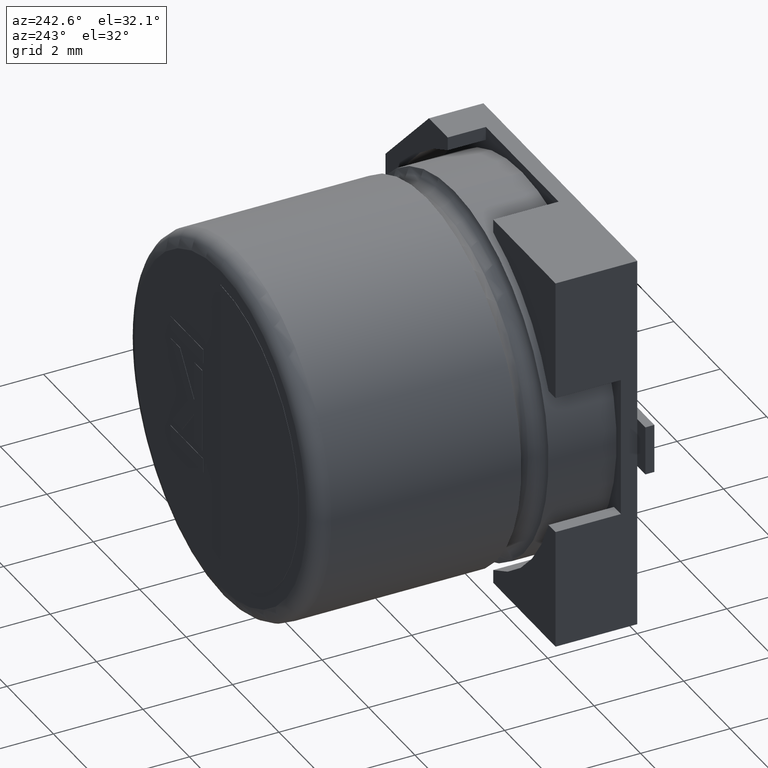
[diagram: clean part render]
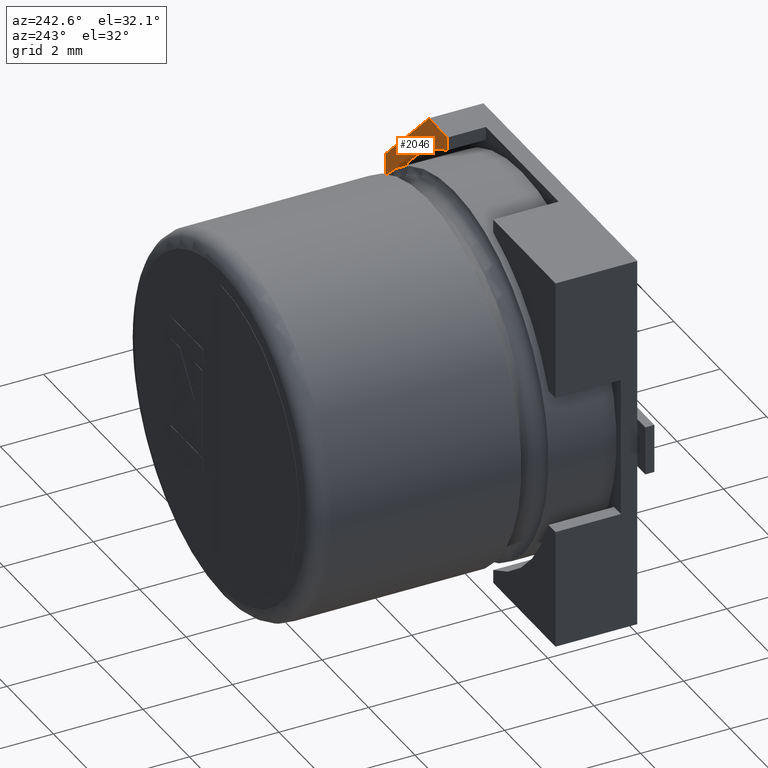
[diagram: same view with one face highlighted and labeled with its STEP entity id]
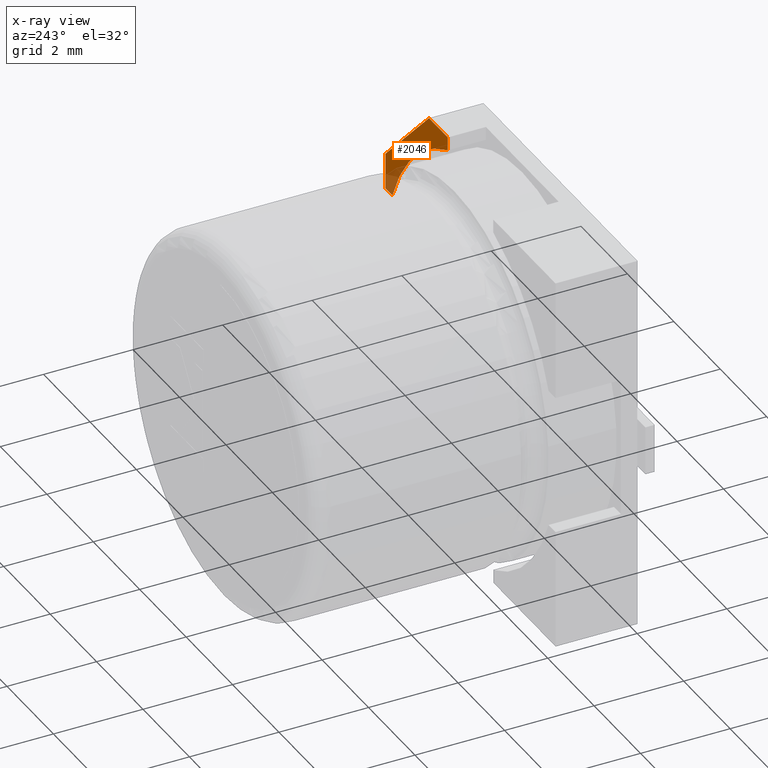
[diagram: x-ray of the same camera — body ghosted, the highlighted face saturated]
A machine part, auxiliary view. The second image highlights one B-rep face of the part: STEP entity #2046.
The next image is the same camera in x-ray: the body ghosted, the highlighted face saturated — about 15% of this face is hidden behind the body in this view.
In plain terms, the highlighted planar face has unit normal (0, -1, 0).
Its self-contained STEP definition (entity closure, byte-faithful):
#100 = LINE ( 'NONE', #809, #484 ) ;
#235 = VECTOR ( 'NONE', #2932, 1000.000000000000000 ) ;
#332 = LINE ( 'NONE', #765, #1005 ) ;
#383 = CIRCLE ( 'NONE', #1779, 4.250000000000000000 ) ;
#402 = CARTESIAN_POINT ( 'NONE',  ( 8.200000000000001100, 1.216666666666666800, -2.681561285864188200 ) ) ;
#484 = VECTOR ( 'NONE', #2912, 1000.000000000000000 ) ;
#489 = VERTEX_POINT ( 'NONE', #1372 ) ;
#493 = CARTESIAN_POINT ( 'NONE',  ( 8.500000000000000000, 1.216666666666666800, -1.874250000000003500 ) ) ;
#557 = LINE ( 'NONE', #1952, #2714 ) ;
#583 = LINE ( 'NONE', #727, #3125 ) ;
#652 = VERTEX_POINT ( 'NONE', #3263 ) ;
#727 = CARTESIAN_POINT ( 'NONE',  ( 5.818438714135812300, 1.216666666666666800, 0.0000000000000000000 ) ) ;
#765 = CARTESIAN_POINT ( 'NONE',  ( 6.625750000000000900, 1.216666666666666800, 0.0000000000000000000 ) ) ;
#809 = CARTESIAN_POINT ( 'NONE',  ( 8.500000000000000000, 1.216666666666666800, -8.500000000000000000 ) ) ;
#847 = DIRECTION ( 'NONE',  ( 0.0000000000000000000, -1.000000000000000000, 0.0000000000000000000 ) ) ;
#857 = ORIENTED_EDGE ( 'NONE', *, *, #1926, .F. ) ;
#1005 = VECTOR ( 'NONE', #2598, 1000.000000000000100 ) ;
#1021 = CARTESIAN_POINT ( 'NONE',  ( 4.250000000000000000, 1.216666666666666800, -4.250000000000000000 ) ) ;
#1038 = EDGE_CURVE ( 'NONE', #652, #1992, #2118, .T. ) ;
#1043 = DIRECTION ( 'NONE',  ( -0.0000000000000000000, 1.000000000000000000, -0.0000000000000000000 ) ) ;
#1076 = VERTEX_POINT ( 'NONE', #402 ) ;
#1127 = CARTESIAN_POINT ( 'NONE',  ( 5.818438714135812300, 1.216666666666666800, 0.0000000000000000000 ) ) ;
#1268 = VERTEX_POINT ( 'NONE', #493 ) ;
#1279 = CARTESIAN_POINT ( 'NONE',  ( 6.625750000000000900, 1.216666666666666800, 0.0000000000000000000 ) ) ;
#1303 = DIRECTION ( 'NONE',  ( -1.836766033387207400E-015, 0.0000000000000000000, -1.000000000000000000 ) ) ;
#1305 = EDGE_LOOP ( 'NONE', ( #1662, #2679, #857, #2472, #2722, #2047 ) ) ;
#1372 = CARTESIAN_POINT ( 'NONE',  ( 5.818438714135812300, 1.216666666666666800, -0.2999999999999999300 ) ) ;
#1446 = EDGE_CURVE ( 'NONE', #1733, #1268, #100, .T. ) ;
#1513 = DIRECTION ( 'NONE',  ( 0.0000000000000000000, 0.0000000000000000000, 1.000000000000000000 ) ) ;
#1608 = EDGE_CURVE ( 'NONE', #1076, #1733, #557, .T. ) ;
#1622 = PLANE ( 'NONE',  #3311 ) ;
#1662 = ORIENTED_EDGE ( 'NONE', *, *, #1446, .F. ) ;
#1733 = VERTEX_POINT ( 'NONE', #2196 ) ;
#1779 = AXIS2_PLACEMENT_3D ( 'NONE', #1021, #1043, #1303 ) ;
#1887 = CARTESIAN_POINT ( 'NONE',  ( 5.818438714135812300, 1.216666666666666800, -8.500000000000000000 ) ) ;
#1926 = EDGE_CURVE ( 'NONE', #489, #1076, #383, .T. ) ;
#1952 = CARTESIAN_POINT ( 'NONE',  ( 0.0000000000000000000, 1.216666666666666800, -2.681561285864188200 ) ) ;
#1992 = VERTEX_POINT ( 'NONE', #1279 ) ;
#2046 = ADVANCED_FACE ( 'NONE', ( #2796 ), #1622, .F. ) ;
#2047 = ORIENTED_EDGE ( 'NONE', *, *, #2773, .F. ) ;
#2118 = LINE ( 'NONE', #1127, #235 ) ;
#2196 = CARTESIAN_POINT ( 'NONE',  ( 8.500000000000000000, 1.216666666666666800, -2.681561285864188200 ) ) ;
#2472 = ORIENTED_EDGE ( 'NONE', *, *, #2680, .T. ) ;
#2480 = DIRECTION ( 'NONE',  ( 1.000000000000000000, 0.0000000000000000000, -0.0000000000000000000 ) ) ;
#2598 = DIRECTION ( 'NONE',  ( -0.7071067811865474600, 0.0000000000000000000, 0.7071067811865474600 ) ) ;
#2622 = DIRECTION ( 'NONE',  ( 0.0000000000000000000, -0.0000000000000000000, -1.000000000000000000 ) ) ;
#2679 = ORIENTED_EDGE ( 'NONE', *, *, #1608, .F. ) ;
#2680 = EDGE_CURVE ( 'NONE', #489, #652, #583, .T. ) ;
#2714 = VECTOR ( 'NONE', #2480, 1000.000000000000000 ) ;
#2722 = ORIENTED_EDGE ( 'NONE', *, *, #1038, .T. ) ;
#2773 = EDGE_CURVE ( 'NONE', #1268, #1992, #332, .T. ) ;
#2796 = FACE_OUTER_BOUND ( 'NONE', #1305, .T. ) ;
#2912 = DIRECTION ( 'NONE',  ( -0.0000000000000000000, -0.0000000000000000000, 1.000000000000000000 ) ) ;
#2932 = DIRECTION ( 'NONE',  ( 1.000000000000000000, 0.0000000000000000000, 0.0000000000000000000 ) ) ;
#3125 = VECTOR ( 'NONE', #1513, 1000.000000000000000 ) ;
#3263 = CARTESIAN_POINT ( 'NONE',  ( 5.818438714135812300, 1.216666666666666800, 0.0000000000000000000 ) ) ;
#3311 = AXIS2_PLACEMENT_3D ( 'NONE', #1887, #847, #2622 ) ;